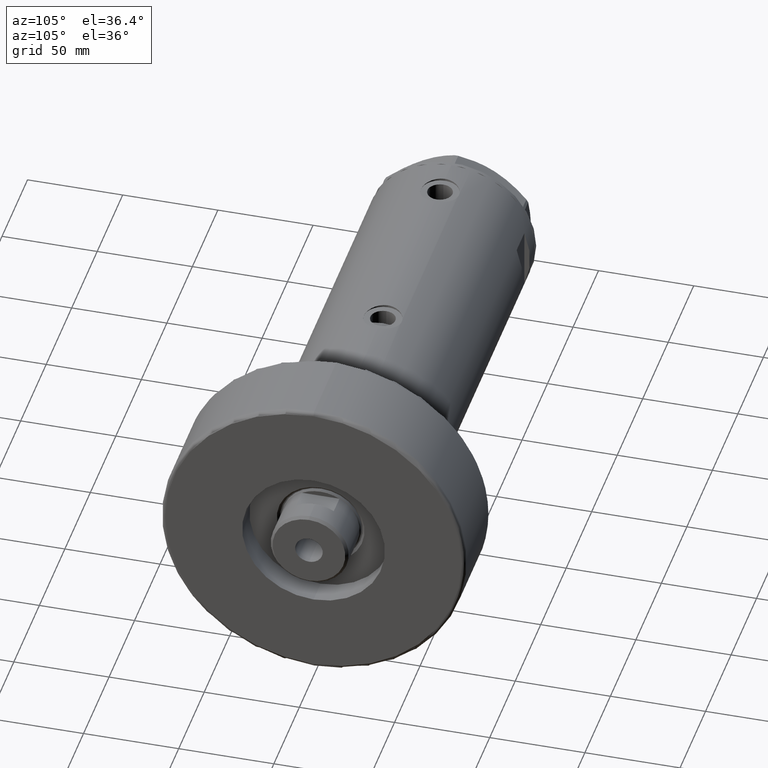
[diagram: clean part render]
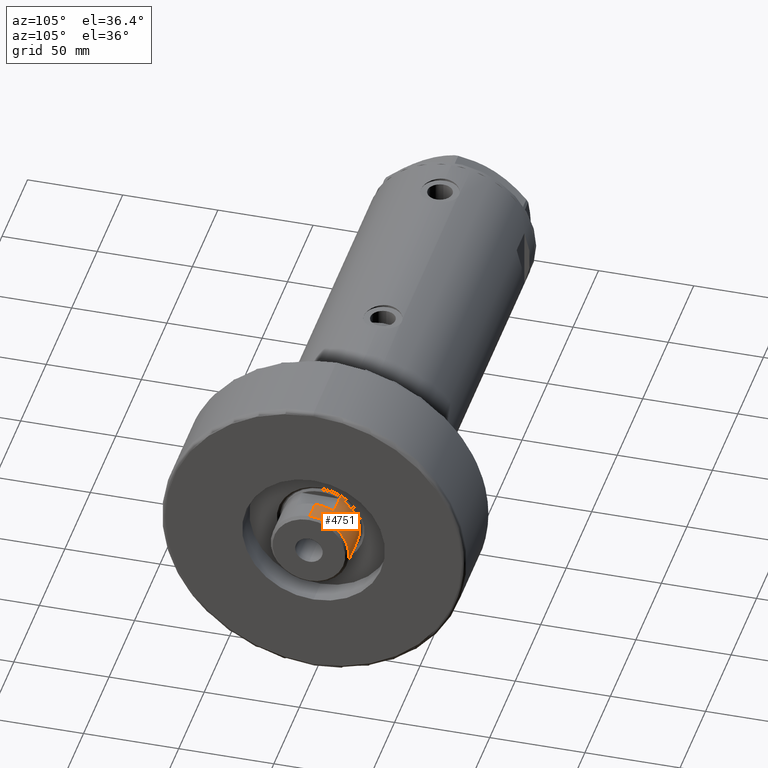
[diagram: same view with one face highlighted and labeled with its STEP entity id]
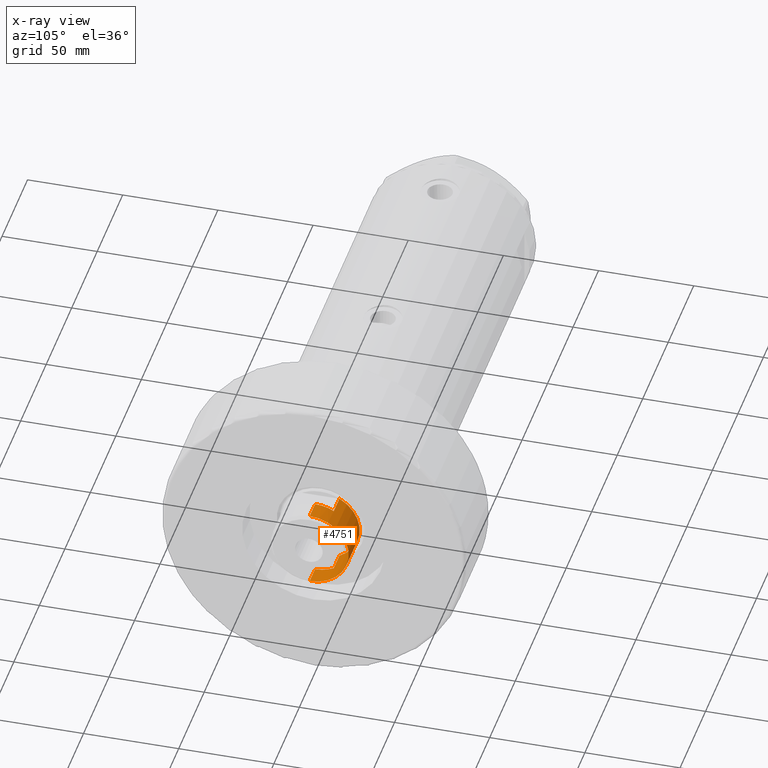
[diagram: x-ray of the same camera — body ghosted, the highlighted face saturated]
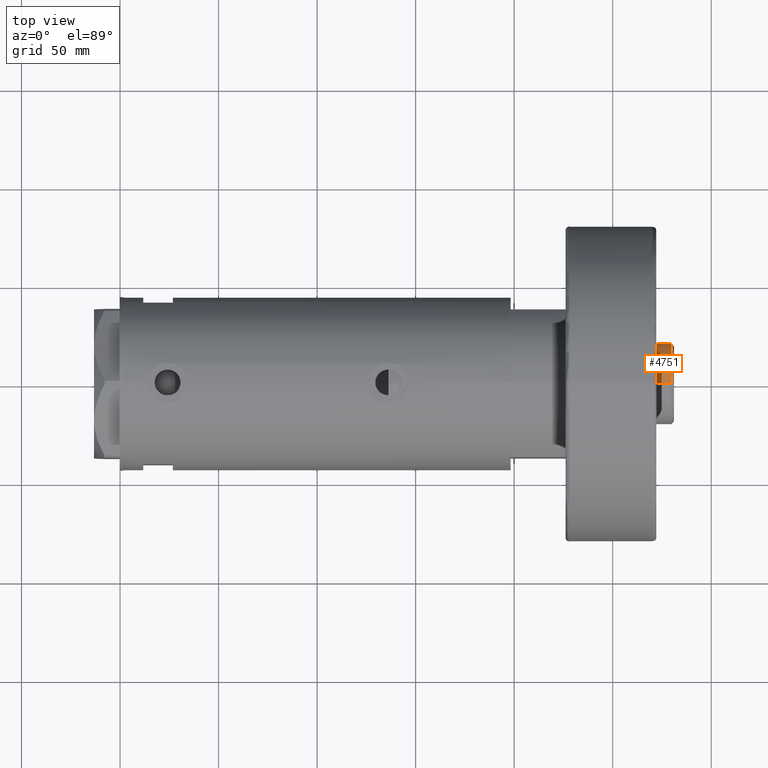
[diagram: same view with one face highlighted and labeled with its STEP entity id]
A machine part, auxiliary view. The second image highlights one B-rep face of the part: STEP entity #4751.
The next image is the same camera in x-ray: the body ghosted, the highlighted face saturated — about 0% of this face is hidden behind the body in this view.
A second angle (top view) of the same face is appended — the face is thin or edge-on in the first view.
In plain terms, the highlighted cylindrical surface (partial cylindrical patch) has radius 20.5 mm, axis along (-1, -0, 0).
Its self-contained STEP definition (entity closure, byte-faithful):
#190 = ORIENTED_EDGE ( 'NONE', *, *, #3579, .F. ) ;
#288 = ORIENTED_EDGE ( 'NONE', *, *, #1268, .T. ) ;
#327 = DIRECTION ( 'NONE',  ( 1.000000000000000000, 0.000000000000000000, 0.000000000000000000 ) ) ;
#404 = CARTESIAN_POINT ( 'NONE',  ( -17.97852886083842705, 9.849999999999997868, 241.3000000000000114 ) ) ;
#484 = EDGE_CURVE ( 'NONE', #2389, #4488, #2582, .T. ) ;
#525 = CARTESIAN_POINT ( 'NONE',  ( -17.97852886083842705, 9.849999999999997868, 241.3000000000000114 ) ) ;
#529 = AXIS2_PLACEMENT_3D ( 'NONE', #4357, #4058, #2488 ) ;
#924 = ORIENTED_EDGE ( 'NONE', *, *, #484, .T. ) ;
#938 = CARTESIAN_POINT ( 'NONE',  ( -20.50000000000000000, 0.000000000000000000, 241.3000000000000114 ) ) ;
#1020 = CARTESIAN_POINT ( 'NONE',  ( 0.000000000000000000, 0.000000000000000000, 230.3000000000000114 ) ) ;
#1072 = VECTOR ( 'NONE', #3447, 1000.000000000000000 ) ;
#1115 = EDGE_CURVE ( 'NONE', #4488, #2515, #3778, .T. ) ;
#1268 = EDGE_CURVE ( 'NONE', #3759, #2847, #1628, .T. ) ;
#1281 = EDGE_CURVE ( 'NONE', #2515, #2490, #4801, .T. ) ;
#1353 = ORIENTED_EDGE ( 'NONE', *, *, #1579, .T. ) ;
#1383 = AXIS2_PLACEMENT_3D ( 'NONE', #2622, #1823, #3334 ) ;
#1402 = CIRCLE ( 'NONE', #529, 20.50000000000000355 ) ;
#1517 = LINE ( 'NONE', #4551, #2821 ) ;
#1549 = ORIENTED_EDGE ( 'NONE', *, *, #4742, .F. ) ;
#1579 = EDGE_CURVE ( 'NONE', #3273, #2389, #1517, .T. ) ;
#1605 = FACE_OUTER_BOUND ( 'NONE', #1632, .T. ) ;
#1628 = CIRCLE ( 'NONE', #1383, 20.50000000000000000 ) ;
#1632 = EDGE_LOOP ( 'NONE', ( #3961, #1353, #924, #4016, #3228, #190, #288, #1549 ) ) ;
#1741 = VERTEX_POINT ( 'NONE', #4752 ) ;
#1823 = DIRECTION ( 'NONE',  ( 0.000000000000000000, 0.000000000000000000, 1.000000000000000000 ) ) ;
#1965 = CYLINDRICAL_SURFACE ( 'NONE', #3152, 20.50000000000000355 ) ;
#1988 = CARTESIAN_POINT ( 'NONE',  ( -17.97852886083842705, 9.849999999999965894, 230.3000000000000114 ) ) ;
#2021 = CARTESIAN_POINT ( 'NONE',  ( 0.000000000000000000, 0.000000000000000000, 241.3000000000000114 ) ) ;
#2296 = DIRECTION ( 'NONE',  ( 0.000000000000000000, 0.000000000000000000, 1.000000000000000000 ) ) ;
#2351 = AXIS2_PLACEMENT_3D ( 'NONE', #3324, #2296, #327 ) ;
#2389 = VERTEX_POINT ( 'NONE', #4859 ) ;
#2488 = DIRECTION ( 'NONE',  ( 1.000000000000000000, 0.000000000000000000, 0.000000000000000000 ) ) ;
#2490 = VERTEX_POINT ( 'NONE', #1988 ) ;
#2515 = VERTEX_POINT ( 'NONE', #2738 ) ;
#2556 = CARTESIAN_POINT ( 'NONE',  ( 20.50000000000000355, 2.510525938252074481E-15, 251.9000000000001194 ) ) ;
#2582 = CIRCLE ( 'NONE', #2351, 20.50000000000000000 ) ;
#2622 = CARTESIAN_POINT ( 'NONE',  ( 0.000000000000000000, 0.000000000000000000, 241.3000000000000114 ) ) ;
#2637 = CARTESIAN_POINT ( 'NONE',  ( -20.50000000000000355, 0.000000000000000000, 241.3000000000000114 ) ) ;
#2667 = AXIS2_PLACEMENT_3D ( 'NONE', #1020, #4070, #2939 ) ;
#2682 = DIRECTION ( 'NONE',  ( -1.000000000000000000, 0.000000000000000000, 0.000000000000000000 ) ) ;
#2715 = DIRECTION ( 'NONE',  ( -0.000000000000000000, -0.000000000000000000, -1.000000000000000000 ) ) ;
#2721 = LINE ( 'NONE', #404, #1072 ) ;
#2738 = CARTESIAN_POINT ( 'NONE',  ( 17.97852886083842705, 9.849999999999997868, 230.3000000000000114 ) ) ;
#2821 = VECTOR ( 'NONE', #3455, 1000.000000000000000 ) ;
#2847 = VERTEX_POINT ( 'NONE', #938 ) ;
#2939 = DIRECTION ( 'NONE',  ( 1.000000000000000000, 0.000000000000000000, 0.000000000000000000 ) ) ;
#2974 = VECTOR ( 'NONE', #2715, 1000.000000000000000 ) ;
#3130 = EDGE_CURVE ( 'NONE', #1741, #3273, #1402, .T. ) ;
#3152 = AXIS2_PLACEMENT_3D ( 'NONE', #2021, #3426, #2682 ) ;
#3228 = ORIENTED_EDGE ( 'NONE', *, *, #1281, .T. ) ;
#3273 = VERTEX_POINT ( 'NONE', #2556 ) ;
#3324 = CARTESIAN_POINT ( 'NONE',  ( 0.000000000000000000, 0.000000000000000000, 241.3000000000000114 ) ) ;
#3334 = DIRECTION ( 'NONE',  ( 1.000000000000000000, 0.000000000000000000, 0.000000000000000000 ) ) ;
#3426 = DIRECTION ( 'NONE',  ( -0.000000000000000000, -0.000000000000000000, -1.000000000000000000 ) ) ;
#3447 = DIRECTION ( 'NONE',  ( -0.000000000000000000, -0.000000000000000000, -1.000000000000000000 ) ) ;
#3455 = DIRECTION ( 'NONE',  ( -0.000000000000000000, -0.000000000000000000, -1.000000000000000000 ) ) ;
#3579 = EDGE_CURVE ( 'NONE', #3759, #2490, #2721, .T. ) ;
#3649 = VECTOR ( 'NONE', #4163, 1000.000000000000000 ) ;
#3759 = VERTEX_POINT ( 'NONE', #525 ) ;
#3778 = LINE ( 'NONE', #4556, #2974 ) ;
#3961 = ORIENTED_EDGE ( 'NONE', *, *, #3130, .T. ) ;
#4016 = ORIENTED_EDGE ( 'NONE', *, *, #1115, .T. ) ;
#4058 = DIRECTION ( 'NONE',  ( 0.000000000000000000, 0.000000000000000000, -1.000000000000000000 ) ) ;
#4070 = DIRECTION ( 'NONE',  ( 0.000000000000000000, 0.000000000000000000, 1.000000000000000000 ) ) ;
#4163 = DIRECTION ( 'NONE',  ( -0.000000000000000000, -0.000000000000000000, -1.000000000000000000 ) ) ;
#4357 = CARTESIAN_POINT ( 'NONE',  ( 0.000000000000000000, 0.000000000000000000, 251.9000000000001194 ) ) ;
#4488 = VERTEX_POINT ( 'NONE', #4590 ) ;
#4525 = LINE ( 'NONE', #2637, #3649 ) ;
#4551 = CARTESIAN_POINT ( 'NONE',  ( 20.50000000000000355, 2.510525938252074481E-15, 241.3000000000000114 ) ) ;
#4556 = CARTESIAN_POINT ( 'NONE',  ( 17.97852886083842705, 9.849999999999997868, 241.3000000000000114 ) ) ;
#4590 = CARTESIAN_POINT ( 'NONE',  ( 17.97852886083842705, 9.849999999999997868, 241.3000000000000114 ) ) ;
#4742 = EDGE_CURVE ( 'NONE', #1741, #2847, #4525, .T. ) ;
#4751 = ADVANCED_FACE ( 'NONE', ( #1605 ), #1965, .T. ) ;
#4752 = CARTESIAN_POINT ( 'NONE',  ( -20.50000000000000355, 0.000000000000000000, 251.9000000000001194 ) ) ;
#4801 = CIRCLE ( 'NONE', #2667, 20.49999999999998934 ) ;
#4859 = CARTESIAN_POINT ( 'NONE',  ( 20.50000000000000000, 2.510525938252074481E-15, 241.3000000000000114 ) ) ;